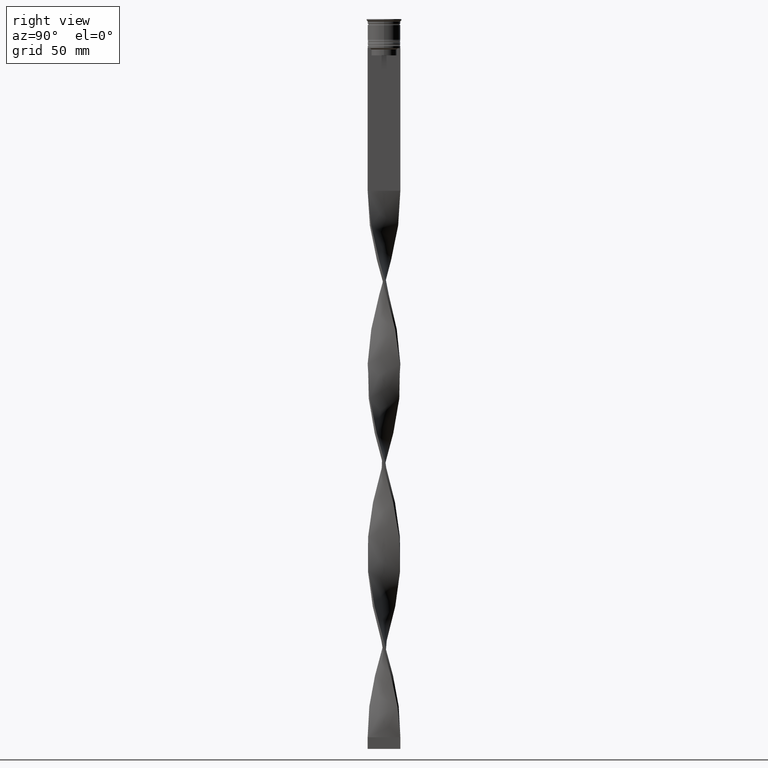
[diagram: clean part render]
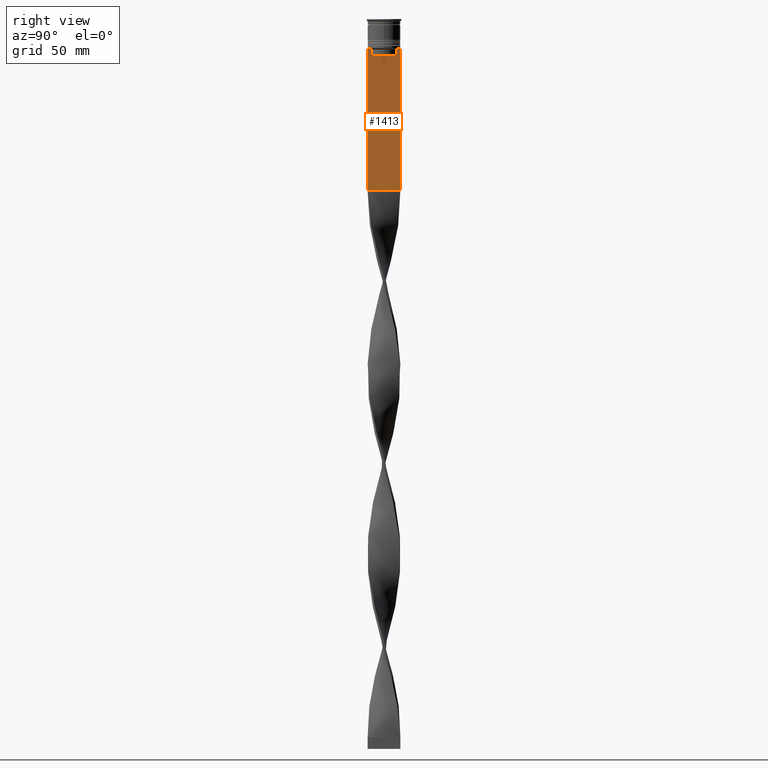
[diagram: same view with one face highlighted and labeled with its STEP entity id]
A machine part, right view. The second image highlights one B-rep face of the part: STEP entity #1413.
In plain terms, the highlighted planar face has unit normal (-1, 0, 0).
Its self-contained STEP definition (entity closure, byte-faithful):
#65 = CARTESIAN_POINT ( 'NONE',  ( 0.5000000000000000000, -5.878775382679629402, -12.50000000000000000 ) ) ;
#114 = EDGE_CURVE ( 'NONE', #1023, #331, #3911, .T. ) ;
#127 = LINE ( 'NONE', #3839, #241 ) ;
#188 = DIRECTION ( 'NONE',  ( -0.000000000000000000, -0.000000000000000000, 1.000000000000000000 ) ) ;
#190 = EDGE_CURVE ( 'NONE', #1793, #2123, #837, .T. ) ;
#241 = VECTOR ( 'NONE', #3503, 1000.000000000000000 ) ;
#271 = ORIENTED_EDGE ( 'NONE', *, *, #443, .T. ) ;
#275 = CARTESIAN_POINT ( 'NONE',  ( 0.5000000000000000000, -6.999999999999997335, 1.535668847618198329 ) ) ;
#311 = CARTESIAN_POINT ( 'NONE',  ( 0.5000000000000000000, 5.376802023508029826, -13.00000000000000178 ) ) ;
#331 = VERTEX_POINT ( 'NONE', #1075 ) ;
#340 = CARTESIAN_POINT ( 'NONE',  ( 0.5000000000000000000, 5.878775382679629402, -12.50000000000000000 ) ) ;
#362 = DIRECTION ( 'NONE',  ( 0.000000000000000000, -1.000000000000000000, 0.000000000000000000 ) ) ;
#381 = DIRECTION ( 'NONE',  ( 0.000000000000000000, 0.000000000000000000, -1.000000000000000000 ) ) ;
#401 = CARTESIAN_POINT ( 'NONE',  ( 0.5000000000000000000, -5.376802023508029826, -13.00000000000000178 ) ) ;
#443 = EDGE_CURVE ( 'NONE', #3803, #1023, #687, .T. ) ;
#498 = LINE ( 'NONE', #3683, #1099 ) ;
#535 = ORIENTED_EDGE ( 'NONE', *, *, #190, .T. ) ;
#553 = EDGE_LOOP ( 'NONE', ( #2094, #1202, #3647, #1065, #3087, #2931, #1665, #3880, #271, #1524, #2159, #535 ) ) ;
#582 = DIRECTION ( 'NONE',  ( 0.000000000000000000, -1.000000000000000000, 0.000000000000000000 ) ) ;
#628 = VECTOR ( 'NONE', #942, 1000.000000000000000 ) ;
#663 = CARTESIAN_POINT ( 'NONE',  ( 0.5000000000000000000, 5.544156989057553275, -12.83336397825725861 ) ) ;
#687 = LINE ( 'NONE', #730, #1935 ) ;
#690 = LINE ( 'NONE', #2581, #2729 ) ;
#717 = VERTEX_POINT ( 'NONE', #2002 ) ;
#730 = CARTESIAN_POINT ( 'NONE',  ( 0.5000000000000000000, -6.999999999999997335, 1.535668847618198329 ) ) ;
#755 = DIRECTION ( 'NONE',  ( 0.000000000000000000, 1.000000000000000000, 0.000000000000000000 ) ) ;
#759 = VECTOR ( 'NONE', #2646, 1000.000000000000000 ) ;
#811 = CARTESIAN_POINT ( 'NONE',  ( 0.5000000000000000000, -6.999999999999997335, -12.50000000000000000 ) ) ;
#812 = VECTOR ( 'NONE', #755, 1000.000000000000000 ) ;
#837 = LINE ( 'NONE', #811, #3261 ) ;
#854 = PLANE ( 'NONE',  #1412 ) ;
#893 = FACE_OUTER_BOUND ( 'NONE', #553, .T. ) ;
#942 = DIRECTION ( 'NONE',  ( 0.000000000000000000, -1.000000000000000000, 0.000000000000000000 ) ) ;
#958 = CARTESIAN_POINT ( 'NONE',  ( 0.5000000000000000000, -5.376802023508029826, -13.00000000000000178 ) ) ;
#969 = EDGE_CURVE ( 'NONE', #1340, #3803, #2953, .T. ) ;
#973 = VERTEX_POINT ( 'NONE', #2712 ) ;
#1023 = VERTEX_POINT ( 'NONE', #2669 ) ;
#1063 = CARTESIAN_POINT ( 'NONE',  ( 0.5000000000000000000, -6.999999999999997335, -73.50000000000001421 ) ) ;
#1065 = ORIENTED_EDGE ( 'NONE', *, *, #3244, .T. ) ;
#1075 = CARTESIAN_POINT ( 'NONE',  ( 0.5000000000000000000, 7.000000000000002665, -73.50000000000001421 ) ) ;
#1099 = VECTOR ( 'NONE', #188, 1000.000000000000000 ) ;
#1202 = ORIENTED_EDGE ( 'NONE', *, *, #2372, .T. ) ;
#1215 = CARTESIAN_POINT ( 'NONE',  ( 0.5000000000000000000, 5.400000000000003908, -15.50000000000000000 ) ) ;
#1293 = EDGE_CURVE ( 'NONE', #2344, #1340, #2489, .T. ) ;
#1298 = VERTEX_POINT ( 'NONE', #1833 ) ;
#1340 = VERTEX_POINT ( 'NONE', #2825 ) ;
#1412 = AXIS2_PLACEMENT_3D ( 'NONE', #275, #4076, #2480 ) ;
#1413 = ADVANCED_FACE ( 'NONE', ( #893 ), #854, .F. ) ;
#1425 = EDGE_CURVE ( 'NONE', #2123, #2104, #690, .T. ) ;
#1485 = VECTOR ( 'NONE', #582, 1000.000000000000000 ) ;
#1520 = EDGE_CURVE ( 'NONE', #1793, #331, #1775, .T. ) ;
#1524 = ORIENTED_EDGE ( 'NONE', *, *, #114, .T. ) ;
#1533 = VERTEX_POINT ( 'NONE', #401 ) ;
#1560 = CARTESIAN_POINT ( 'NONE',  ( 0.5000000000000000000, 5.711478846560141598, -12.66669470477064685 ) ) ;
#1665 = ORIENTED_EDGE ( 'NONE', *, *, #1293, .T. ) ;
#1775 = LINE ( 'NONE', #3481, #2277 ) ;
#1793 = VERTEX_POINT ( 'NONE', #3779 ) ;
#1833 = CARTESIAN_POINT ( 'NONE',  ( 0.5000000000000000000, 5.376802023508029826, -15.50000000000000000 ) ) ;
#1859 = CARTESIAN_POINT ( 'NONE',  ( 0.5000000000000000000, 6.881860213634102053, -12.50000000000000000 ) ) ;
#1892 = B_SPLINE_CURVE_WITH_KNOTS ( 'NONE', 3,
 ( #958, #3733, #3153, #3126 ),
 .UNSPECIFIED., .F., .F.,
 ( 4, 4 ),
 ( 0.02539176325380714666, 0.02610162431828674801 ),
 .UNSPECIFIED. ) ;
#1935 = VECTOR ( 'NONE', #2297, 1000.000000000000000 ) ;
#1989 = CARTESIAN_POINT ( 'NONE',  ( 0.5000000000000000000, -6.999999999999997335, -12.50000000000000000 ) ) ;
#2002 = CARTESIAN_POINT ( 'NONE',  ( 0.5000000000000000000, 5.376802023508029826, -13.00000000000000178 ) ) ;
#2068 = DIRECTION ( 'NONE',  ( 0.000000000000000000, -1.000000000000000000, 0.000000000000000000 ) ) ;
#2094 = ORIENTED_EDGE ( 'NONE', *, *, #1425, .T. ) ;
#2104 = VERTEX_POINT ( 'NONE', #340 ) ;
#2110 = B_SPLINE_CURVE_WITH_KNOTS ( 'NONE', 3,
 ( #2574, #1560, #663, #311 ),
 .UNSPECIFIED., .F., .F.,
 ( 4, 4 ),
 ( 0.01003009312103698807, 0.01073859663834952557 ),
 .UNSPECIFIED. ) ;
#2123 = VERTEX_POINT ( 'NONE', #1859 ) ;
#2159 = ORIENTED_EDGE ( 'NONE', *, *, #1520, .F. ) ;
#2185 = LINE ( 'NONE', #1215, #1485 ) ;
#2277 = VECTOR ( 'NONE', #381, 1000.000000000000000 ) ;
#2297 = DIRECTION ( 'NONE',  ( 0.000000000000000000, 0.000000000000000000, -1.000000000000000000 ) ) ;
#2344 = VERTEX_POINT ( 'NONE', #65 ) ;
#2372 = EDGE_CURVE ( 'NONE', #2104, #717, #2110, .T. ) ;
#2480 = DIRECTION ( 'NONE',  ( 0.000000000000000000, 0.000000000000000000, 1.000000000000000000 ) ) ;
#2489 = LINE ( 'NONE', #4086, #628 ) ;
#2574 = CARTESIAN_POINT ( 'NONE',  ( 0.5000000000000000000, 5.878775382679629402, -12.50000000000000000 ) ) ;
#2581 = CARTESIAN_POINT ( 'NONE',  ( 0.5000000000000000000, -6.999999999999997335, -12.50000000000000000 ) ) ;
#2646 = DIRECTION ( 'NONE',  ( 0.000000000000000000, -1.000000000000000000, 0.000000000000000000 ) ) ;
#2669 = CARTESIAN_POINT ( 'NONE',  ( 0.5000000000000000000, -6.999999999999997335, -73.50000000000001421 ) ) ;
#2712 = CARTESIAN_POINT ( 'NONE',  ( 0.5000000000000000000, -5.376802023508029826, -15.50000000000000000 ) ) ;
#2729 = VECTOR ( 'NONE', #362, 1000.000000000000000 ) ;
#2825 = CARTESIAN_POINT ( 'NONE',  ( 0.5000000000000000000, -6.881860213634102053, -12.50000000000000000 ) ) ;
#2931 = ORIENTED_EDGE ( 'NONE', *, *, #3699, .T. ) ;
#2953 = LINE ( 'NONE', #2969, #759 ) ;
#2969 = CARTESIAN_POINT ( 'NONE',  ( 0.5000000000000000000, -6.999999999999997335, -12.50000000000000000 ) ) ;
#3087 = ORIENTED_EDGE ( 'NONE', *, *, #3990, .T. ) ;
#3126 = CARTESIAN_POINT ( 'NONE',  ( 0.5000000000000000000, -5.878775382679629402, -12.50000000000000000 ) ) ;
#3153 = CARTESIAN_POINT ( 'NONE',  ( 0.5000000000000000000, -5.711478856069293286, -12.66669469529570335 ) ) ;
#3244 = EDGE_CURVE ( 'NONE', #1298, #973, #2185, .T. ) ;
#3261 = VECTOR ( 'NONE', #2068, 1000.000000000000000 ) ;
#3398 = EDGE_CURVE ( 'NONE', #717, #1298, #127, .T. ) ;
#3481 = CARTESIAN_POINT ( 'NONE',  ( 0.5000000000000000000, 7.000000000000002665, 1.535668847618198329 ) ) ;
#3503 = DIRECTION ( 'NONE',  ( 0.000000000000000000, 0.000000000000000000, -1.000000000000000000 ) ) ;
#3647 = ORIENTED_EDGE ( 'NONE', *, *, #3398, .T. ) ;
#3683 = CARTESIAN_POINT ( 'NONE',  ( 0.5000000000000000000, -5.376802023508029826, 0.000000000000000000 ) ) ;
#3699 = EDGE_CURVE ( 'NONE', #1533, #2344, #1892, .T. ) ;
#3733 = CARTESIAN_POINT ( 'NONE',  ( 0.5000000000000000000, -5.544156999454441959, -12.83336396790503642 ) ) ;
#3779 = CARTESIAN_POINT ( 'NONE',  ( 0.5000000000000000000, 7.000000000000002665, -12.50000000000000000 ) ) ;
#3803 = VERTEX_POINT ( 'NONE', #1989 ) ;
#3839 = CARTESIAN_POINT ( 'NONE',  ( 0.5000000000000000000, 5.376802023508029826, 0.000000000000000000 ) ) ;
#3880 = ORIENTED_EDGE ( 'NONE', *, *, #969, .T. ) ;
#3911 = LINE ( 'NONE', #1063, #812 ) ;
#3990 = EDGE_CURVE ( 'NONE', #973, #1533, #498, .T. ) ;
#4076 = DIRECTION ( 'NONE',  ( -1.000000000000000000, 0.000000000000000000, 0.000000000000000000 ) ) ;
#4086 = CARTESIAN_POINT ( 'NONE',  ( 0.5000000000000000000, -6.999999999999997335, -12.50000000000000000 ) ) ;